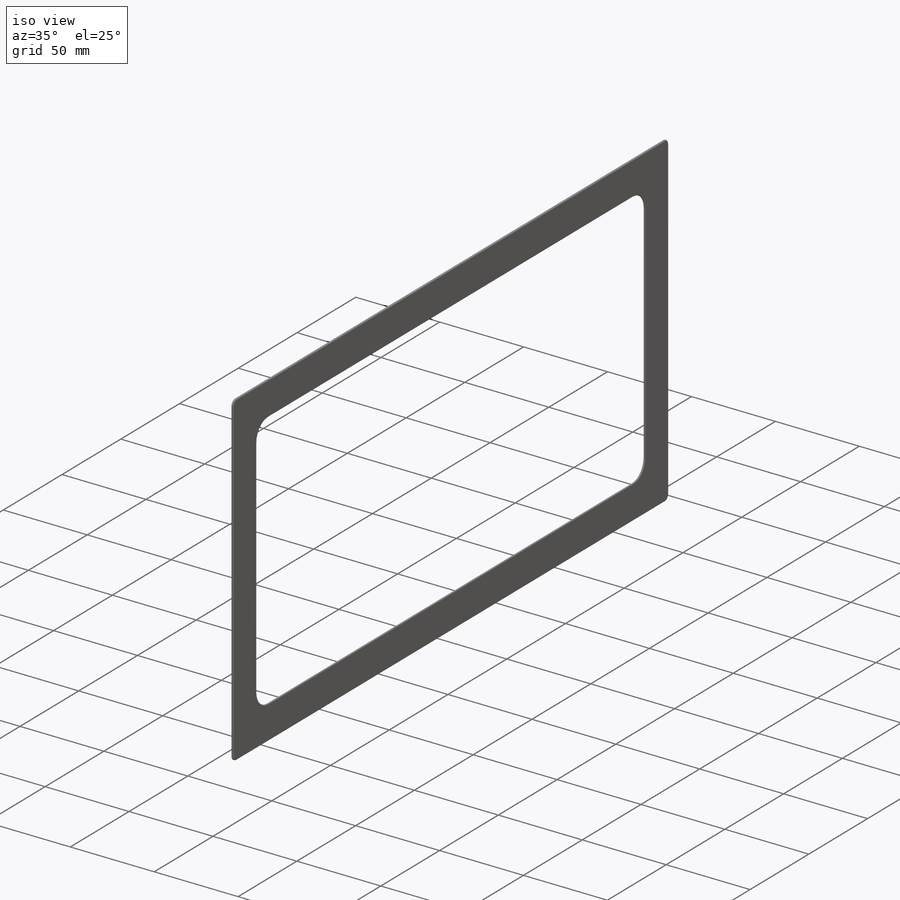
[diagram: iso view]
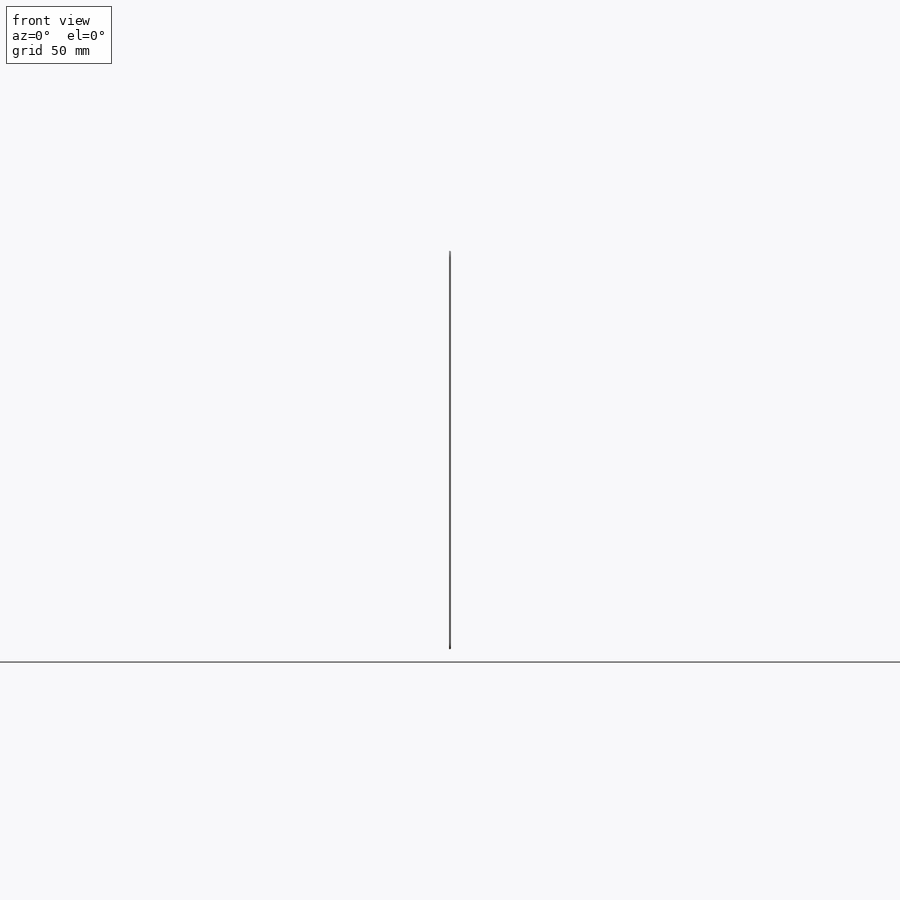
[diagram: front view]
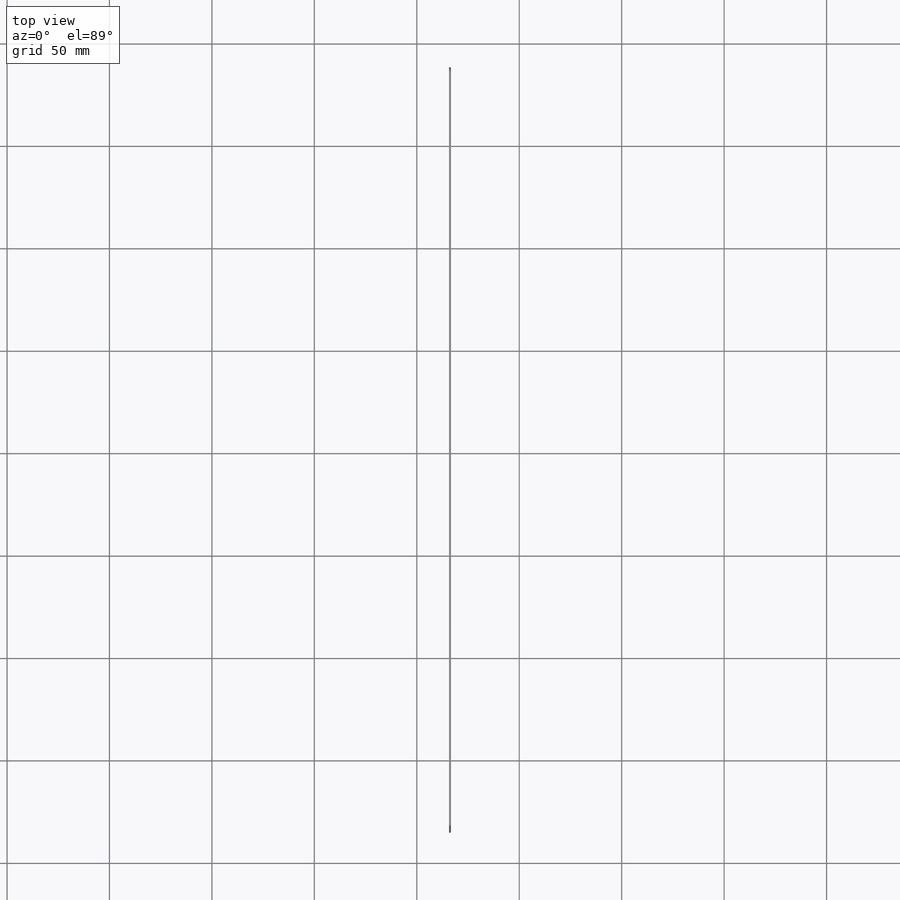
[diagram: top view]
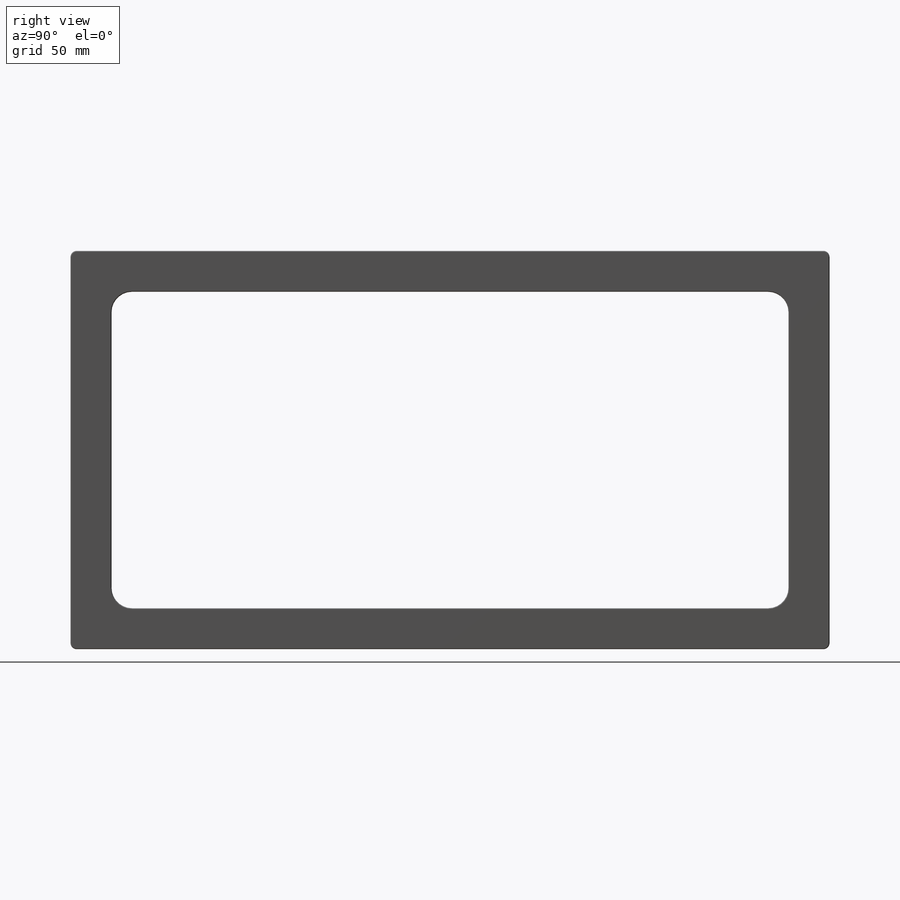
[diagram: right view]
SOLIDWORKS PART (.sldprt)
format: sldprt  version: not decoded by parser v0  size: 4,905,472 bytes
history: native  units: mm
features: fillet x37, material x1, plane x1, sketch x1, extrude x1 (+11 scaffold rows collapsed)
feature tree (52):
  scaffold x11  (default folders/planes/origin — collapsed)
  material  "Plain Carbon Steel"
  plane  "Plane1"  Offset=12.7mm
  sketch  "Sketch1"  dims[D2=10.0mm D3=3.0mm D1=20.0mm]
  extrude  "Boss-Extrude1"  Depth=0mm NLT_HIDE=0mm NLT_HIDE_TO_CAMERA=0mm NLT_HIDE_TO_REFLECTIONS_AND_REFRACTIONS=0mm NLT_HIDE_TO_GI=0mm NLT_EXCLUDE_FROM_ZCLIP_PLANES=0mm NLT_IS_MULTI_MATERIAL_BODY=0mm NLT_MAT_ID=0mm
  fillet  "Fillet1"  [1 undecoded]
  fillet  "NLT_3"  Radius=0mm NLT_MAT_ID=0mm NLT_HIDE=0mm NLT_HIDE_TO_CAMERA=0mm NLT_HIDE_TO_REFLECTIONS_AND_REFRACTIONS=0mm NLT_HIDE_TO_GI=0mm NLT_EXCLUDE_FROM_ZCLIP_PLANES=0mm NLT_IS_MULTI_MATERIAL_BODY=0mm
  fillet  "NLT_1"  Radius=0mm NLT_MAT_ID=0mm NLT_HIDE=0mm NLT_HIDE_TO_CAMERA=0mm NLT_HIDE_TO_REFLECTIONS_AND_REFRACTIONS=0mm NLT_HIDE_TO_GI=0mm NLT_EXCLUDE_FROM_ZCLIP_PLANES=0mm NLT_IS_MULTI_MATERIAL_BODY=0mm
  fillet  "NLT_4"  Radius=0mm NLT_MAT_ID=0mm NLT_HIDE=0mm NLT_HIDE_TO_CAMERA=0mm NLT_HIDE_TO_REFLECTIONS_AND_REFRACTIONS=0mm NLT_HIDE_TO_GI=0mm NLT_EXCLUDE_FROM_ZCLIP_PLANES=0mm NLT_IS_MULTI_MATERIAL_BODY=0mm
  fillet  "NLT_5"  Radius=0mm NLT_MAT_ID=0mm NLT_HIDE=0mm NLT_HIDE_TO_CAMERA=0mm NLT_HIDE_TO_REFLECTIONS_AND_REFRACTIONS=0mm NLT_HIDE_TO_GI=0mm NLT_EXCLUDE_FROM_ZCLIP_PLANES=0mm NLT_IS_MULTI_MATERIAL_BODY=0mm
  fillet  "NLT_6"  Radius=0mm NLT_MAT_ID=0mm NLT_HIDE=0mm NLT_HIDE_TO_CAMERA=0mm NLT_HIDE_TO_REFLECTIONS_AND_REFRACTIONS=0mm NLT_HIDE_TO_GI=0mm NLT_EXCLUDE_FROM_ZCLIP_PLANES=0mm NLT_IS_MULTI_MATERIAL_BODY=0mm
  fillet  "NLT_7"  Radius=0mm NLT_MAT_ID=0mm NLT_HIDE=0mm NLT_HIDE_TO_CAMERA=0mm NLT_HIDE_TO_REFLECTIONS_AND_REFRACTIONS=0mm NLT_HIDE_TO_GI=0mm NLT_EXCLUDE_FROM_ZCLIP_PLANES=0mm NLT_IS_MULTI_MATERIAL_BODY=0mm
  fillet  "NLT_8"  Radius=0mm NLT_MAT_ID=0mm NLT_HIDE=0mm NLT_HIDE_TO_CAMERA=0mm NLT_HIDE_TO_REFLECTIONS_AND_REFRACTIONS=0mm NLT_HIDE_TO_GI=0mm NLT_EXCLUDE_FROM_ZCLIP_PLANES=0mm NLT_IS_MULTI_MATERIAL_BODY=0mm
  fillet  "NLT_9"  Radius=0mm NLT_MAT_ID=0mm NLT_HIDE=0mm NLT_HIDE_TO_CAMERA=0mm NLT_HIDE_TO_REFLECTIONS_AND_REFRACTIONS=0mm NLT_HIDE_TO_GI=0mm NLT_EXCLUDE_FROM_ZCLIP_PLANES=0mm NLT_IS_MULTI_MATERIAL_BODY=0mm
  fillet  "NLT_10"  Radius=0mm NLT_MAT_ID=0mm NLT_HIDE=0mm NLT_HIDE_TO_CAMERA=0mm NLT_HIDE_TO_REFLECTIONS_AND_REFRACTIONS=0mm NLT_HIDE_TO_GI=0mm NLT_EXCLUDE_FROM_ZCLIP_PLANES=0mm NLT_IS_MULTI_MATERIAL_BODY=0mm
  fillet  "NLT_11"  Radius=0mm NLT_MAT_ID=0mm NLT_HIDE=0mm NLT_HIDE_TO_CAMERA=0mm NLT_HIDE_TO_REFLECTIONS_AND_REFRACTIONS=0mm NLT_HIDE_TO_GI=0mm NLT_EXCLUDE_FROM_ZCLIP_PLANES=0mm NLT_IS_MULTI_MATERIAL_BODY=0mm
  fillet  "NLT_12"  Radius=0mm NLT_MAT_ID=0mm NLT_HIDE=0mm NLT_HIDE_TO_CAMERA=0mm NLT_HIDE_TO_REFLECTIONS_AND_REFRACTIONS=0mm NLT_HIDE_TO_GI=0mm NLT_EXCLUDE_FROM_ZCLIP_PLANES=0mm NLT_IS_MULTI_MATERIAL_BODY=0mm
  fillet  "NLT_13"  Radius=0mm NLT_MAT_ID=0mm NLT_HIDE=0mm NLT_HIDE_TO_CAMERA=0mm NLT_HIDE_TO_REFLECTIONS_AND_REFRACTIONS=0mm NLT_HIDE_TO_GI=0mm NLT_EXCLUDE_FROM_ZCLIP_PLANES=0mm NLT_IS_MULTI_MATERIAL_BODY=0mm
  fillet  "NLT_14"  Radius=0mm NLT_MAT_ID=0mm NLT_HIDE=0mm NLT_HIDE_TO_CAMERA=0mm NLT_HIDE_TO_REFLECTIONS_AND_REFRACTIONS=0mm NLT_HIDE_TO_GI=0mm NLT_EXCLUDE_FROM_ZCLIP_PLANES=0mm NLT_IS_MULTI_MATERIAL_BODY=0mm
  fillet  "NLT_15"  Radius=0mm NLT_MAT_ID=0mm NLT_HIDE=0mm NLT_HIDE_TO_CAMERA=0mm NLT_HIDE_TO_REFLECTIONS_AND_REFRACTIONS=0mm NLT_HIDE_TO_GI=0mm NLT_EXCLUDE_FROM_ZCLIP_PLANES=0mm NLT_IS_MULTI_MATERIAL_BODY=0mm
  fillet  "NLT_16"  Radius=0mm NLT_MAT_ID=0mm NLT_HIDE=0mm NLT_HIDE_TO_CAMERA=0mm NLT_HIDE_TO_REFLECTIONS_AND_REFRACTIONS=0mm NLT_HIDE_TO_GI=0mm NLT_EXCLUDE_FROM_ZCLIP_PLANES=0mm NLT_IS_MULTI_MATERIAL_BODY=0mm
  fillet  "NLT_17"  Radius=0mm NLT_MAT_ID=0mm NLT_HIDE=0mm NLT_HIDE_TO_CAMERA=0mm NLT_HIDE_TO_REFLECTIONS_AND_REFRACTIONS=0mm NLT_HIDE_TO_GI=0mm NLT_EXCLUDE_FROM_ZCLIP_PLANES=0mm NLT_IS_MULTI_MATERIAL_BODY=0mm
  fillet  "NLT_18"  Radius=0mm NLT_MAT_ID=0mm NLT_HIDE=0mm NLT_HIDE_TO_CAMERA=0mm NLT_HIDE_TO_REFLECTIONS_AND_REFRACTIONS=0mm NLT_HIDE_TO_GI=0mm NLT_EXCLUDE_FROM_ZCLIP_PLANES=0mm NLT_IS_MULTI_MATERIAL_BODY=0mm
  fillet  "NLT_19"  Radius=0mm NLT_MAT_ID=0mm NLT_HIDE=0mm NLT_HIDE_TO_CAMERA=0mm NLT_HIDE_TO_REFLECTIONS_AND_REFRACTIONS=0mm NLT_HIDE_TO_GI=0mm NLT_EXCLUDE_FROM_ZCLIP_PLANES=0mm NLT_IS_MULTI_MATERIAL_BODY=0mm
  fillet  "NLT_20"  Radius=0mm NLT_MAT_ID=0mm NLT_HIDE=0mm NLT_HIDE_TO_CAMERA=0mm NLT_HIDE_TO_REFLECTIONS_AND_REFRACTIONS=0mm NLT_HIDE_TO_GI=0mm NLT_EXCLUDE_FROM_ZCLIP_PLANES=0mm NLT_IS_MULTI_MATERIAL_BODY=0mm
  fillet  "NLT_21"  Radius=0mm NLT_MAT_ID=0mm NLT_HIDE=0mm NLT_HIDE_TO_CAMERA=0mm NLT_HIDE_TO_REFLECTIONS_AND_REFRACTIONS=0mm NLT_HIDE_TO_GI=0mm NLT_EXCLUDE_FROM_ZCLIP_PLANES=0mm NLT_IS_MULTI_MATERIAL_BODY=0mm
  fillet  "NLT_22"  Radius=0mm NLT_MAT_ID=0mm NLT_HIDE=0mm NLT_HIDE_TO_CAMERA=0mm NLT_HIDE_TO_REFLECTIONS_AND_REFRACTIONS=0mm NLT_HIDE_TO_GI=0mm NLT_EXCLUDE_FROM_ZCLIP_PLANES=0mm NLT_IS_MULTI_MATERIAL_BODY=0mm
  fillet  "NLT_23"  Radius=0mm NLT_MAT_ID=0mm NLT_HIDE=0mm NLT_HIDE_TO_CAMERA=0mm NLT_HIDE_TO_REFLECTIONS_AND_REFRACTIONS=0mm NLT_HIDE_TO_GI=0mm NLT_EXCLUDE_FROM_ZCLIP_PLANES=0mm NLT_IS_MULTI_MATERIAL_BODY=0mm
  fillet  "NLT_24"  Radius=0mm NLT_MAT_ID=0mm NLT_HIDE=0mm NLT_HIDE_TO_CAMERA=0mm NLT_HIDE_TO_REFLECTIONS_AND_REFRACTIONS=0mm NLT_HIDE_TO_GI=0mm NLT_EXCLUDE_FROM_ZCLIP_PLANES=0mm NLT_IS_MULTI_MATERIAL_BODY=0mm
  fillet  "NLT_25"  Radius=0mm NLT_MAT_ID=0mm NLT_HIDE=0mm NLT_HIDE_TO_CAMERA=0mm NLT_HIDE_TO_REFLECTIONS_AND_REFRACTIONS=0mm NLT_HIDE_TO_GI=0mm NLT_EXCLUDE_FROM_ZCLIP_PLANES=0mm NLT_IS_MULTI_MATERIAL_BODY=0mm
  fillet  "NLT_26"  Radius=0mm NLT_MAT_ID=0mm NLT_HIDE=0mm NLT_HIDE_TO_CAMERA=0mm NLT_HIDE_TO_REFLECTIONS_AND_REFRACTIONS=0mm NLT_HIDE_TO_GI=0mm NLT_EXCLUDE_FROM_ZCLIP_PLANES=0mm NLT_IS_MULTI_MATERIAL_BODY=0mm
  fillet  "NLT_27"  Radius=0mm NLT_MAT_ID=0mm NLT_HIDE=0mm NLT_HIDE_TO_CAMERA=0mm NLT_HIDE_TO_REFLECTIONS_AND_REFRACTIONS=0mm NLT_HIDE_TO_GI=0mm NLT_EXCLUDE_FROM_ZCLIP_PLANES=0mm NLT_IS_MULTI_MATERIAL_BODY=0mm
  fillet  "NLT_28"  Radius=0mm NLT_MAT_ID=0mm NLT_HIDE=0mm NLT_HIDE_TO_CAMERA=0mm NLT_HIDE_TO_REFLECTIONS_AND_REFRACTIONS=0mm NLT_HIDE_TO_GI=0mm NLT_EXCLUDE_FROM_ZCLIP_PLANES=0mm NLT_IS_MULTI_MATERIAL_BODY=0mm
  fillet  "NLT_29"  Radius=0mm NLT_MAT_ID=0mm NLT_HIDE=0mm NLT_HIDE_TO_CAMERA=0mm NLT_HIDE_TO_REFLECTIONS_AND_REFRACTIONS=0mm NLT_HIDE_TO_GI=0mm NLT_EXCLUDE_FROM_ZCLIP_PLANES=0mm NLT_IS_MULTI_MATERIAL_BODY=0mm
  fillet  "NLT_30"  Radius=0mm NLT_MAT_ID=0mm NLT_HIDE=0mm NLT_HIDE_TO_CAMERA=0mm NLT_HIDE_TO_REFLECTIONS_AND_REFRACTIONS=0mm NLT_HIDE_TO_GI=0mm NLT_EXCLUDE_FROM_ZCLIP_PLANES=0mm NLT_IS_MULTI_MATERIAL_BODY=0mm
  fillet  "NLT_31"  Radius=0mm NLT_MAT_ID=0mm NLT_HIDE=0mm NLT_HIDE_TO_CAMERA=0mm NLT_HIDE_TO_REFLECTIONS_AND_REFRACTIONS=0mm NLT_HIDE_TO_GI=0mm NLT_EXCLUDE_FROM_ZCLIP_PLANES=0mm NLT_IS_MULTI_MATERIAL_BODY=0mm
  fillet  "NLT_32"  Radius=0mm NLT_MAT_ID=0mm NLT_HIDE=0mm NLT_HIDE_TO_CAMERA=0mm NLT_HIDE_TO_REFLECTIONS_AND_REFRACTIONS=0mm NLT_HIDE_TO_GI=0mm NLT_EXCLUDE_FROM_ZCLIP_PLANES=0mm NLT_IS_MULTI_MATERIAL_BODY=0mm
  fillet  "NLT_33"  Radius=0mm NLT_MAT_ID=0mm NLT_HIDE=0mm NLT_HIDE_TO_CAMERA=0mm NLT_HIDE_TO_REFLECTIONS_AND_REFRACTIONS=0mm NLT_HIDE_TO_GI=0mm NLT_EXCLUDE_FROM_ZCLIP_PLANES=0mm NLT_IS_MULTI_MATERIAL_BODY=0mm
  fillet  "NLT_34"  Radius=0mm NLT_MAT_ID=0mm NLT_HIDE=0mm NLT_HIDE_TO_CAMERA=0mm NLT_HIDE_TO_REFLECTIONS_AND_REFRACTIONS=0mm NLT_HIDE_TO_GI=0mm NLT_EXCLUDE_FROM_ZCLIP_PLANES=0mm NLT_IS_MULTI_MATERIAL_BODY=0mm
  fillet  "NLT_35"  Radius=0mm NLT_MAT_ID=0mm NLT_HIDE=0mm NLT_HIDE_TO_CAMERA=0mm NLT_HIDE_TO_REFLECTIONS_AND_REFRACTIONS=0mm NLT_HIDE_TO_GI=0mm NLT_EXCLUDE_FROM_ZCLIP_PLANES=0mm NLT_IS_MULTI_MATERIAL_BODY=0mm
  fillet  "NLT_36"  Radius=0mm NLT_MAT_ID=0mm NLT_HIDE=0mm NLT_HIDE_TO_CAMERA=0mm NLT_HIDE_TO_REFLECTIONS_AND_REFRACTIONS=0mm NLT_HIDE_TO_GI=0mm NLT_EXCLUDE_FROM_ZCLIP_PLANES=0mm NLT_IS_MULTI_MATERIAL_BODY=0mm
  fillet  "NLT_37"  Radius=0mm NLT_MAT_ID=0mm NLT_HIDE=0mm NLT_HIDE_TO_CAMERA=0mm NLT_HIDE_TO_REFLECTIONS_AND_REFRACTIONS=0mm NLT_HIDE_TO_GI=0mm NLT_EXCLUDE_FROM_ZCLIP_PLANES=0mm NLT_IS_MULTI_MATERIAL_BODY=0mm
decode coverage: 38 of 39 modeling features carry decoded parameters
note: 1 parameter value undecoded
note: suppression state not decoded; provenance and decode notes live in map.json
